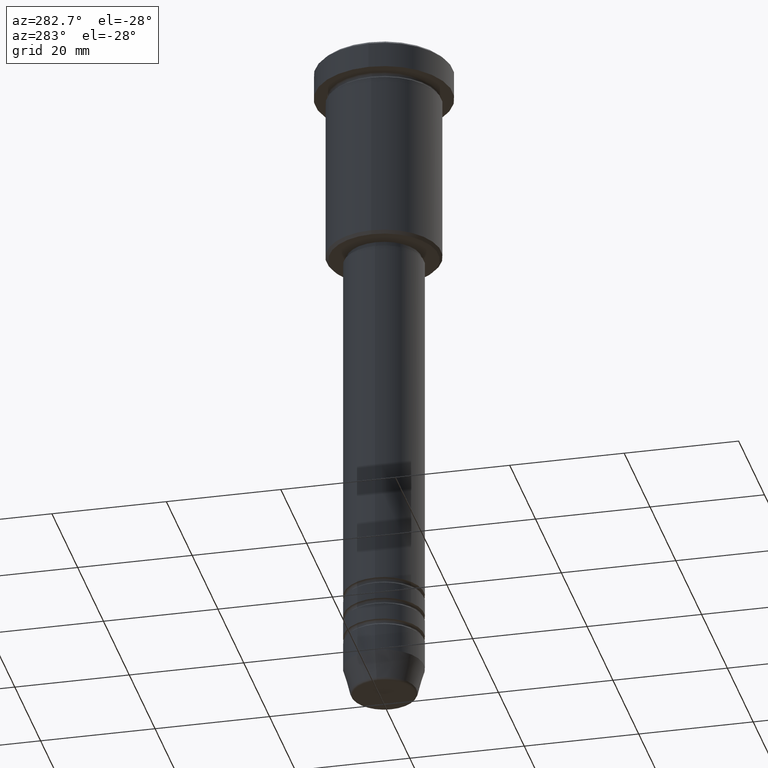
[diagram: clean part render]
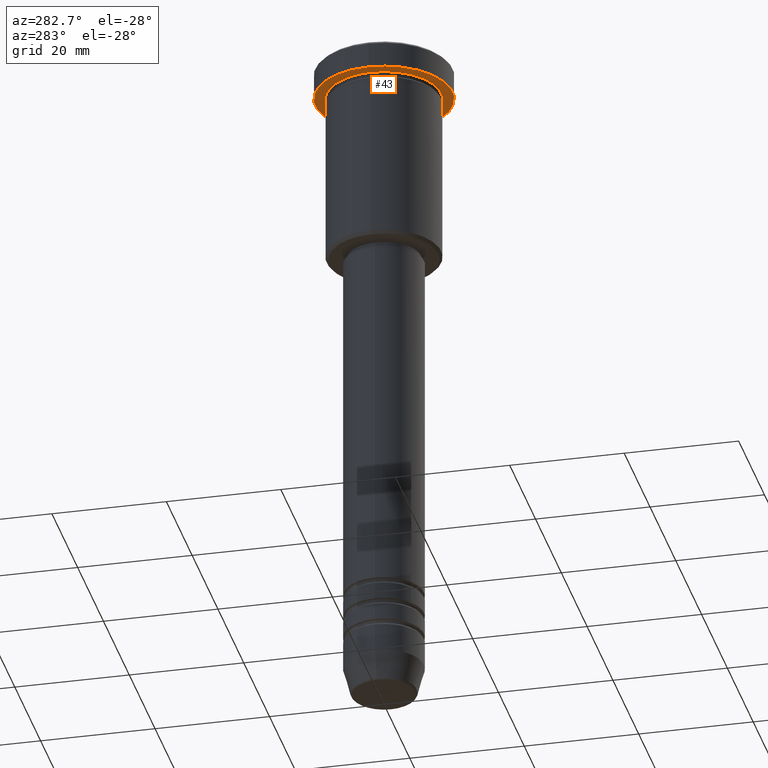
[diagram: same view with one face highlighted and labeled with its STEP entity id]
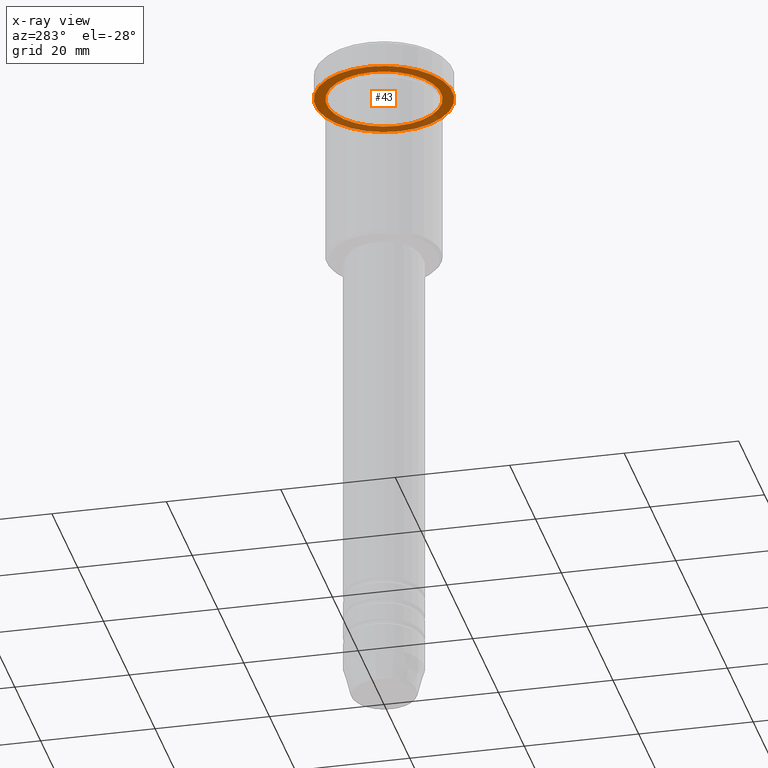
[diagram: x-ray of the same camera — body ghosted, the highlighted face saturated]
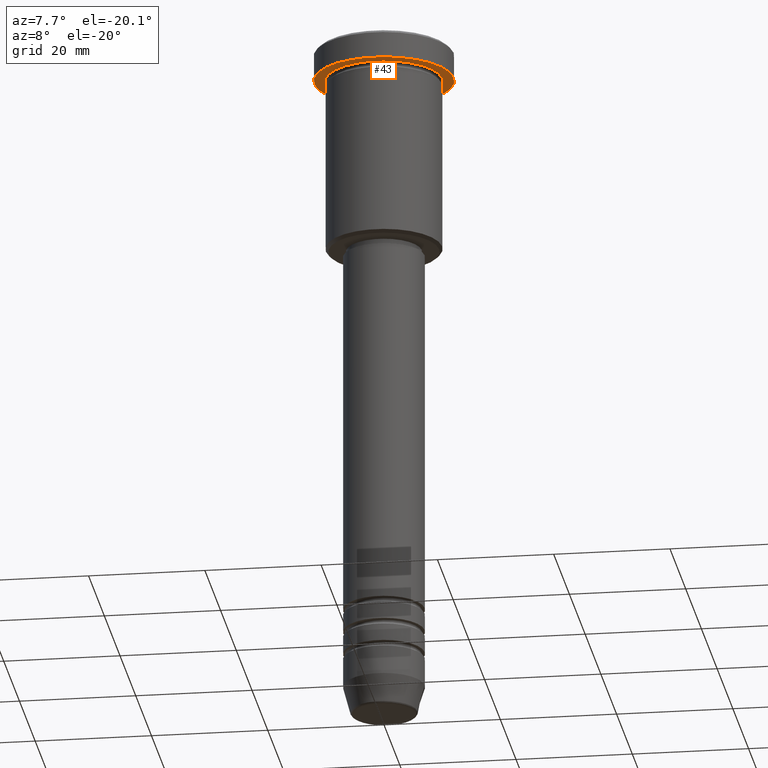
[diagram: same view with one face highlighted and labeled with its STEP entity id]
A machine part, auxiliary view. The second image highlights one B-rep face of the part: STEP entity #43.
The next image is the same camera in x-ray: the body ghosted, the highlighted face saturated — about 30% of this face is hidden behind the body in this view.
A second angle (auxiliary view) of the same face is appended — the face is thin or edge-on in the first view.
In plain terms, the highlighted planar face has unit normal (0, 0, -1).
Its self-contained STEP definition (entity closure, byte-faithful):
#4 = CARTESIAN_POINT ( 'NONE',  ( 10.00000000000000000, 1.224646799147353256E-15, -4.999999999999999112 ) ) ;
#40 = CIRCLE ( 'NONE', #500, 10.00000000000000000 ) ;
#43 = ADVANCED_FACE ( 'NONE', ( #1018, #390 ), #113, .T. ) ;
#113 = PLANE ( 'NONE',  #141 ) ;
#125 = DIRECTION ( 'NONE',  ( 1.000000000000000000, 0.000000000000000000, 0.000000000000000000 ) ) ;
#141 = AXIS2_PLACEMENT_3D ( 'NONE', #572, #1028, #1124 ) ;
#174 = CARTESIAN_POINT ( 'NONE',  ( 12.00000000000000000, 0.000000000000000000, -5.000000000000000000 ) ) ;
#177 = AXIS2_PLACEMENT_3D ( 'NONE', #1156, #1053, #1147 ) ;
#206 = EDGE_CURVE ( 'NONE', #1017, #629, #850, .T. ) ;
#241 = CARTESIAN_POINT ( 'NONE',  ( -10.00000000000000000, 0.000000000000000000, -4.999999999999999112 ) ) ;
#271 = DIRECTION ( 'NONE',  ( -0.000000000000000000, -0.000000000000000000, 1.000000000000000000 ) ) ;
#302 = DIRECTION ( 'NONE',  ( -1.000000000000000000, 0.000000000000000000, 0.000000000000000000 ) ) ;
#341 = VERTEX_POINT ( 'NONE', #4 ) ;
#369 = ORIENTED_EDGE ( 'NONE', *, *, #206, .F. ) ;
#390 = FACE_OUTER_BOUND ( 'NONE', #1021, .T. ) ;
#408 = EDGE_CURVE ( 'NONE', #1098, #341, #40, .T. ) ;
#411 = ORIENTED_EDGE ( 'NONE', *, *, #871, .F. ) ;
#413 = DIRECTION ( 'NONE',  ( -0.000000000000000000, -0.000000000000000000, 1.000000000000000000 ) ) ;
#481 = CARTESIAN_POINT ( 'NONE',  ( 0.000000000000000000, 0.000000000000000000, -5.000000000000000000 ) ) ;
#489 = CIRCLE ( 'NONE', #1119, 12.00000000000000000 ) ;
#500 = AXIS2_PLACEMENT_3D ( 'NONE', #919, #271, #744 ) ;
#509 = ORIENTED_EDGE ( 'NONE', *, *, #564, .T. ) ;
#564 = EDGE_CURVE ( 'NONE', #341, #1098, #959, .T. ) ;
#572 = CARTESIAN_POINT ( 'NONE',  ( 0.000000000000000000, 12.00000000000000000, -5.000000000000000000 ) ) ;
#629 = VERTEX_POINT ( 'NONE', #683 ) ;
#665 = CARTESIAN_POINT ( 'NONE',  ( 0.000000000000000000, 0.000000000000000000, -5.000000000000000000 ) ) ;
#683 = CARTESIAN_POINT ( 'NONE',  ( -12.00000000000000000, 1.469576158976823947E-15, -5.000000000000000000 ) ) ;
#744 = DIRECTION ( 'NONE',  ( -1.000000000000000000, 0.000000000000000000, 0.000000000000000000 ) ) ;
#850 = CIRCLE ( 'NONE', #177, 12.00000000000000000 ) ;
#871 = EDGE_CURVE ( 'NONE', #629, #1017, #489, .T. ) ;
#895 = EDGE_LOOP ( 'NONE', ( #990, #509 ) ) ;
#919 = CARTESIAN_POINT ( 'NONE',  ( 0.000000000000000000, 0.000000000000000000, -5.000000000000000000 ) ) ;
#941 = AXIS2_PLACEMENT_3D ( 'NONE', #665, #413, #302 ) ;
#959 = CIRCLE ( 'NONE', #941, 10.00000000000000000 ) ;
#990 = ORIENTED_EDGE ( 'NONE', *, *, #408, .T. ) ;
#1017 = VERTEX_POINT ( 'NONE', #174 ) ;
#1018 = FACE_BOUND ( 'NONE', #895, .T. ) ;
#1021 = EDGE_LOOP ( 'NONE', ( #369, #411 ) ) ;
#1028 = DIRECTION ( 'NONE',  ( 0.000000000000000000, 0.000000000000000000, -1.000000000000000000 ) ) ;
#1031 = DIRECTION ( 'NONE',  ( -0.000000000000000000, -0.000000000000000000, 1.000000000000000000 ) ) ;
#1053 = DIRECTION ( 'NONE',  ( -0.000000000000000000, -0.000000000000000000, 1.000000000000000000 ) ) ;
#1098 = VERTEX_POINT ( 'NONE', #241 ) ;
#1119 = AXIS2_PLACEMENT_3D ( 'NONE', #481, #1031, #125 ) ;
#1124 = DIRECTION ( 'NONE',  ( -1.000000000000000000, 0.000000000000000000, -0.000000000000000000 ) ) ;
#1147 = DIRECTION ( 'NONE',  ( 1.000000000000000000, 0.000000000000000000, 0.000000000000000000 ) ) ;
#1156 = CARTESIAN_POINT ( 'NONE',  ( 0.000000000000000000, 0.000000000000000000, -5.000000000000000000 ) ) ;